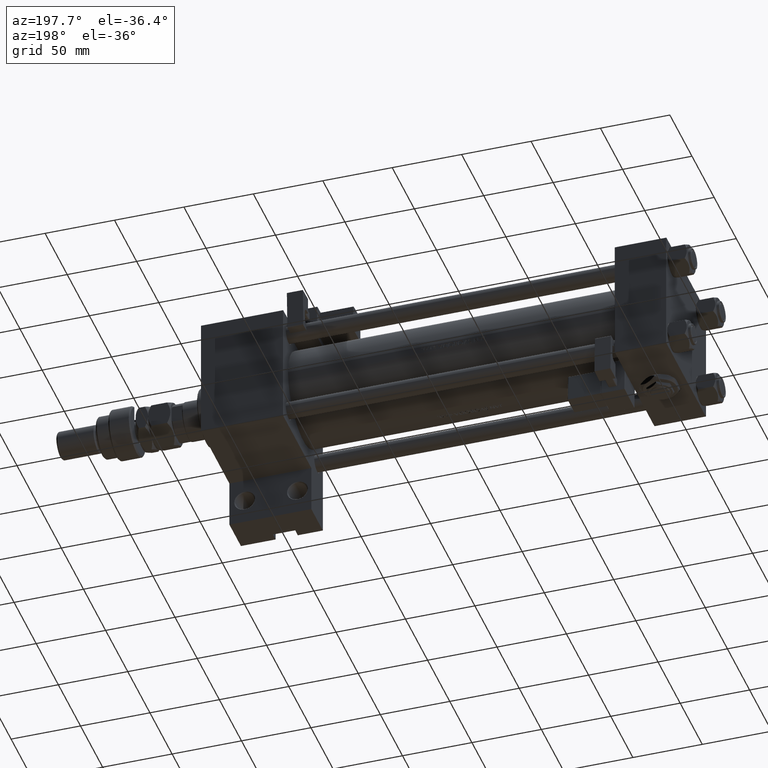
[diagram: clean part render]
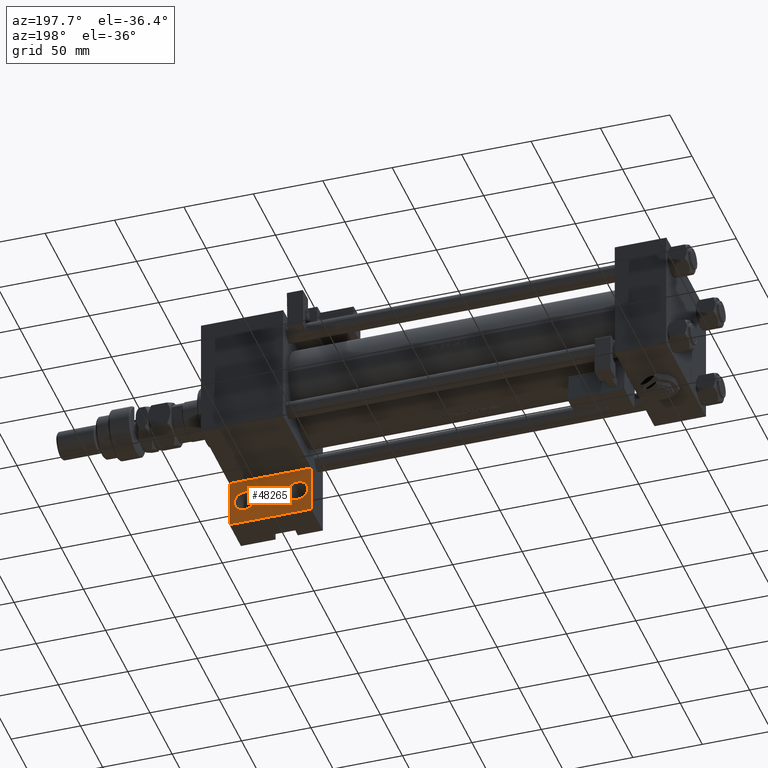
[diagram: same view with one face highlighted and labeled with its STEP entity id]
A machine part, auxiliary view. The second image highlights one B-rep face of the part: STEP entity #48265.
In plain terms, the highlighted planar face has unit normal (0, 1, 0).
Its self-contained STEP definition (entity closure, byte-faithful):
#19 = PLANE ( 'NONE',  #12987 ) ;
#155 = CARTESIAN_POINT ( 'NONE',  ( 323.9999999999999432, 62.00000000000000000, -19.00000000000000000 ) ) ;
#795 = CARTESIAN_POINT ( 'NONE',  ( 275.9999999999999432, 45.00000000000001421, -19.00000000000000000 ) ) ;
#2352 = CIRCLE ( 'NONE', #5867, 7.499500000000103306 ) ;
#3079 = ORIENTED_EDGE ( 'NONE', *, *, #49000, .T. ) ;
#5867 = AXIS2_PLACEMENT_3D ( 'NONE', #42642, #9223, #42904 ) ;
#8471 = EDGE_CURVE ( 'NONE', #33084, #23571, #29880, .T. ) ;
#8890 = ORIENTED_EDGE ( 'NONE', *, *, #48517, .F. ) ;
#9223 = DIRECTION ( 'NONE',  ( -0.000000000000000000, -0.000000000000000000, -1.000000000000000000 ) ) ;
#9583 = LINE ( 'NONE', #795, #28872 ) ;
#9955 = DIRECTION ( 'NONE',  ( 1.000000000000000000, 0.000000000000000000, 0.000000000000000000 ) ) ;
#11213 = CARTESIAN_POINT ( 'NONE',  ( 334.9999999999999432, 79.99999999999998579, -19.00000000000000000 ) ) ;
#11353 = VERTEX_POINT ( 'NONE', #11880 ) ;
#11675 = LINE ( 'NONE', #52489, #38587 ) ;
#11880 = CARTESIAN_POINT ( 'NONE',  ( 334.9999999999999432, 44.99999999999992895, -19.00000000000000000 ) ) ;
#12987 = AXIS2_PLACEMENT_3D ( 'NONE', #46326, #50702, #37853 ) ;
#13570 = VERTEX_POINT ( 'NONE', #25092 ) ;
#13715 = DIRECTION ( 'NONE',  ( -0.000000000000000000, 1.000000000000000000, -0.000000000000000000 ) ) ;
#14969 = DIRECTION ( 'NONE',  ( 0.000000000000000000, -1.000000000000000000, 0.000000000000000000 ) ) ;
#16747 = DIRECTION ( 'NONE',  ( 1.000000000000000000, 0.000000000000000000, 0.000000000000000000 ) ) ;
#17289 = FACE_OUTER_BOUND ( 'NONE', #49174, .T. ) ;
#20225 = ORIENTED_EDGE ( 'NONE', *, *, #42287, .T. ) ;
#21142 = DIRECTION ( 'NONE',  ( -0.000000000000000000, -0.000000000000000000, -1.000000000000000000 ) ) ;
#21424 = FACE_BOUND ( 'NONE', #31803, .T. ) ;
#22221 = CARTESIAN_POINT ( 'NONE',  ( 275.9999999999999432, 79.99999999999995737, -19.00000000000000000 ) ) ;
#23571 = VERTEX_POINT ( 'NONE', #29139 ) ;
#23760 = VERTEX_POINT ( 'NONE', #49357 ) ;
#23886 = EDGE_CURVE ( 'NONE', #23760, #47919, #39034, .T. ) ;
#25092 = CARTESIAN_POINT ( 'NONE',  ( 275.9999999999999432, 45.00000000000001421, -18.99999999999997513 ) ) ;
#25376 = DIRECTION ( 'NONE',  ( 1.000000000000000000, 0.000000000000000000, 0.000000000000000000 ) ) ;
#25508 = CARTESIAN_POINT ( 'NONE',  ( 286.0000000000000000, 62.00000000000002842, -19.00000000000000000 ) ) ;
#26266 = EDGE_CURVE ( 'NONE', #45236, #44094, #29711, .T. ) ;
#28087 = CARTESIAN_POINT ( 'NONE',  ( 278.5004999999998745, 62.00000000000002842, -19.00000000000000000 ) ) ;
#28872 = VECTOR ( 'NONE', #41933, 1000.000000000000000 ) ;
#29139 = CARTESIAN_POINT ( 'NONE',  ( 331.4995000000000687, 62.00000000000000000, -19.00000000000000000 ) ) ;
#29711 = LINE ( 'NONE', #51600, #52118 ) ;
#29880 = CIRCLE ( 'NONE', #51721, 7.499500000000103306 ) ;
#30255 = ORIENTED_EDGE ( 'NONE', *, *, #53600, .F. ) ;
#30263 = AXIS2_PLACEMENT_3D ( 'NONE', #25508, #21142, #16747 ) ;
#31803 = EDGE_LOOP ( 'NONE', ( #3079, #40127 ) ) ;
#33084 = VERTEX_POINT ( 'NONE', #51305 ) ;
#34118 = DIRECTION ( 'NONE',  ( -0.000000000000000000, -0.000000000000000000, -1.000000000000000000 ) ) ;
#34531 = FACE_BOUND ( 'NONE', #47311, .T. ) ;
#34828 = CARTESIAN_POINT ( 'NONE',  ( 275.9999999999999432, 79.99999999999995737, -19.00000000000000000 ) ) ;
#35890 = LINE ( 'NONE', #22221, #48857 ) ;
#37853 = DIRECTION ( 'NONE',  ( 1.000000000000000000, 0.000000000000000000, -0.000000000000000000 ) ) ;
#38587 = VECTOR ( 'NONE', #14969, 1000.000000000000000 ) ;
#39025 = DIRECTION ( 'NONE',  ( 1.000000000000000000, 4.704334850106595794E-16, 0.000000000000000000 ) ) ;
#39034 = CIRCLE ( 'NONE', #30263, 7.499500000000103306 ) ;
#39473 = ORIENTED_EDGE ( 'NONE', *, *, #51909, .F. ) ;
#40127 = ORIENTED_EDGE ( 'NONE', *, *, #8471, .T. ) ;
#41933 = DIRECTION ( 'NONE',  ( -1.000000000000000000, 1.411300455031978640E-15, -0.000000000000000000 ) ) ;
#42287 = EDGE_CURVE ( 'NONE', #47919, #23760, #2352, .T. ) ;
#42642 = CARTESIAN_POINT ( 'NONE',  ( 286.0000000000000000, 62.00000000000002842, -19.00000000000000000 ) ) ;
#42904 = DIRECTION ( 'NONE',  ( 1.000000000000000000, 0.000000000000000000, 0.000000000000000000 ) ) ;
#44094 = VERTEX_POINT ( 'NONE', #11213 ) ;
#44521 = AXIS2_PLACEMENT_3D ( 'NONE', #52938, #52128, #9955 ) ;
#45236 = VERTEX_POINT ( 'NONE', #34828 ) ;
#46326 = CARTESIAN_POINT ( 'NONE',  ( 0.000000000000000000, 0.000000000000000000, -19.00000000000000000 ) ) ;
#47311 = EDGE_LOOP ( 'NONE', ( #49750, #20225 ) ) ;
#47919 = VERTEX_POINT ( 'NONE', #28087 ) ;
#48265 = ADVANCED_FACE ( 'NONE', ( #21424, #34531, #17289 ), #19, .T. ) ;
#48437 = ORIENTED_EDGE ( 'NONE', *, *, #26266, .F. ) ;
#48517 = EDGE_CURVE ( 'NONE', #13570, #45236, #35890, .T. ) ;
#48857 = VECTOR ( 'NONE', #13715, 1000.000000000000000 ) ;
#49000 = EDGE_CURVE ( 'NONE', #23571, #33084, #52401, .T. ) ;
#49174 = EDGE_LOOP ( 'NONE', ( #8890, #39473, #30255, #48437 ) ) ;
#49357 = CARTESIAN_POINT ( 'NONE',  ( 293.4995000000000687, 62.00000000000002842, -19.00000000000000000 ) ) ;
#49750 = ORIENTED_EDGE ( 'NONE', *, *, #23886, .T. ) ;
#50702 = DIRECTION ( 'NONE',  ( 0.000000000000000000, 0.000000000000000000, 1.000000000000000000 ) ) ;
#51305 = CARTESIAN_POINT ( 'NONE',  ( 316.5004999999998745, 62.00000000000000000, -19.00000000000000000 ) ) ;
#51600 = CARTESIAN_POINT ( 'NONE',  ( 275.9999999999999432, 79.99999999999995737, -19.00000000000000000 ) ) ;
#51721 = AXIS2_PLACEMENT_3D ( 'NONE', #155, #34118, #25376 ) ;
#51909 = EDGE_CURVE ( 'NONE', #11353, #13570, #9583, .T. ) ;
#52118 = VECTOR ( 'NONE', #39025, 1000.000000000000000 ) ;
#52128 = DIRECTION ( 'NONE',  ( -0.000000000000000000, -0.000000000000000000, -1.000000000000000000 ) ) ;
#52401 = CIRCLE ( 'NONE', #44521, 7.499500000000103306 ) ;
#52489 = CARTESIAN_POINT ( 'NONE',  ( 334.9999999999999432, 79.99999999999998579, -19.00000000000000000 ) ) ;
#52938 = CARTESIAN_POINT ( 'NONE',  ( 323.9999999999999432, 62.00000000000000000, -19.00000000000000000 ) ) ;
#53600 = EDGE_CURVE ( 'NONE', #44094, #11353, #11675, .T. ) ;